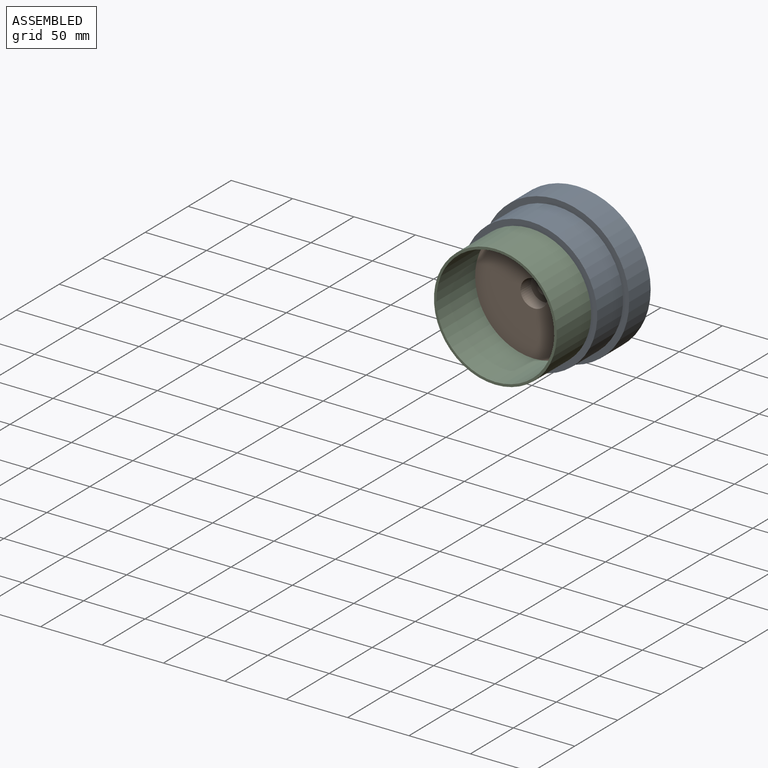
[diagram: assembled view]
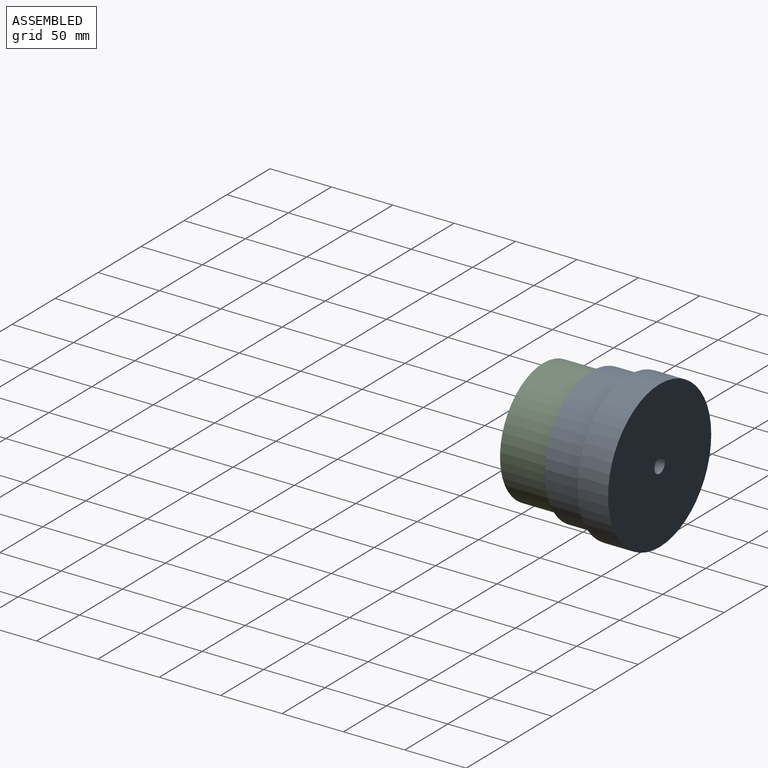
[diagram: assembled view, second angle]
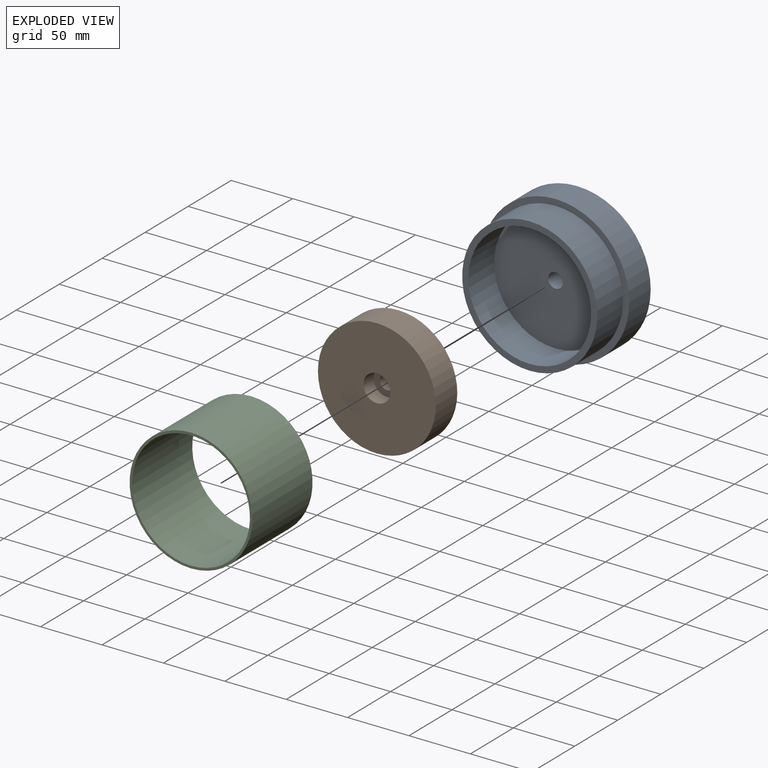
[diagram: exploded view]
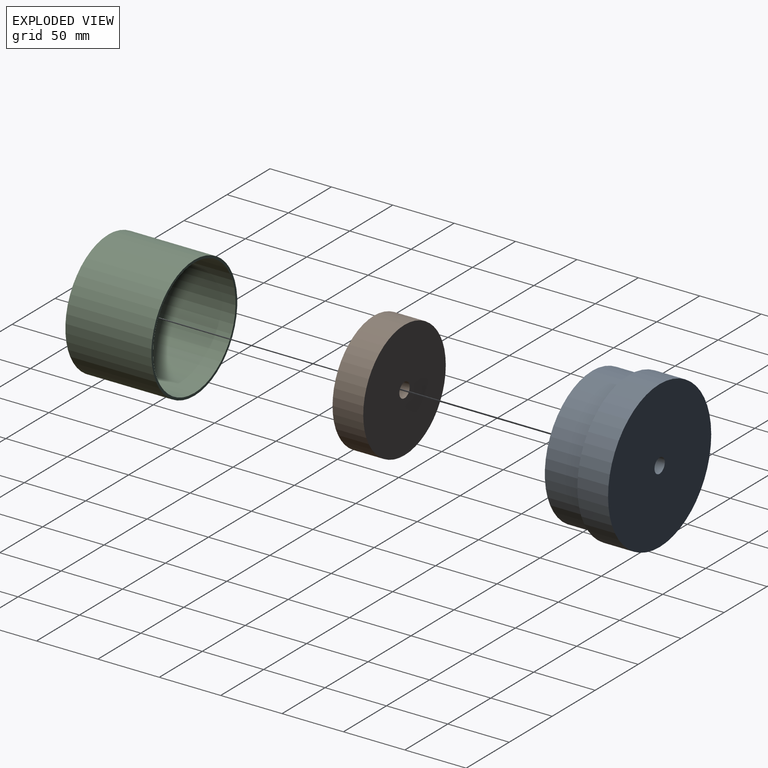
[diagram: exploded view, second angle]
ASSEMBLY  parts=3 mates=4
PART A: 8 faces, bbox 120x55x120 mm
  f0: cylinder r=60mm len=120mm, axis (0,-1,0), area 9424.4mm2, adj f1,f2
  f1: plane 120x120mm, normal (0,1,0), area 11195.7mm2, adj f0,f7
  f2: plane 120x120mm, normal (0,-1,0), area 1805.5mm2, adj f0,f4
  f3: cylinder r=50mm len=100mm, axis (0,1,0), area 9424.8mm2, adj f5,f6
  f4: cylinder r=55mm len=110mm, axis (0,1,0), area 10367.3mm2, adj f2,f5
  f5: plane 110x110mm, normal (0,-1,0), area 1649.3mm2, adj f3,f4
  f6: plane 100x100mm, normal (0,-1,0), area 7740.9mm2, adj f3,f7
  f7: cylinder r=6mm len=25mm, axis (0,-1,0), area 942.5mm2, adj f1,f6
PART B: 6 faces, bbox 96x25x96 mm
  f0: cylinder r=6mm len=13mm, axis (0,-1,0), area 490.1mm2, adj f2,f5
  f1: cylinder r=48mm len=96mm, axis (0,-1,0), area 7539.8mm2, adj f2,f3
  f2: plane 96x96mm, normal (0,1,0), area 7125.1mm2, adj f0,f1
  f3: plane 96x96mm, normal (0,-1,0), area 6858.1mm2, adj f1,f4
  f4: cylinder r=11mm len=22mm, axis (0,-1,0), area 829.4mm2, adj f3,f5
  f5: plane 22x22mm, normal (0,-1,0), area 267mm2, adj f0,f4
PART C: 4 faces, bbox 100x70x100 mm
  f0: cylinder r=48mm len=96mm, axis (0,-1,0), area 21111.5mm2, adj f2,f3
  f1: cylinder r=50mm len=100mm, axis (0,-1,0), area 21991.1mm2, adj f2,f3
  f2: plane 100x100mm, normal (0,1,0), area 615.8mm2, adj f0,f1
  f3: plane 100x100mm, normal (0,-1,0), area 615.8mm2, adj f0,f1
PLACE A t=(-254.7,-115.8,-23.98)mm
PLACE B t=(-254.7,-140.8,-23.98)mm
PLACE C t=(-254.7,-185.8,-23.98)mm
MATE cylindrical C.f0 <-> B.f1  axis (0,-1,0) through (-254.7,-150.8,-23.98)mm
MATE planar A.f3 <-> C.f1  axis (0,-1,0) through (-254.7,-115.8,-23.98)mm
MATE planar B.f1 <-> A.f3  axis (0,1,0) through (-254.7,-115.8,-23.98)mm
MATE slider A.f3 <-> C.f0  axis (0,-1,0) through (-254.7,-115.8,-23.98)mm
